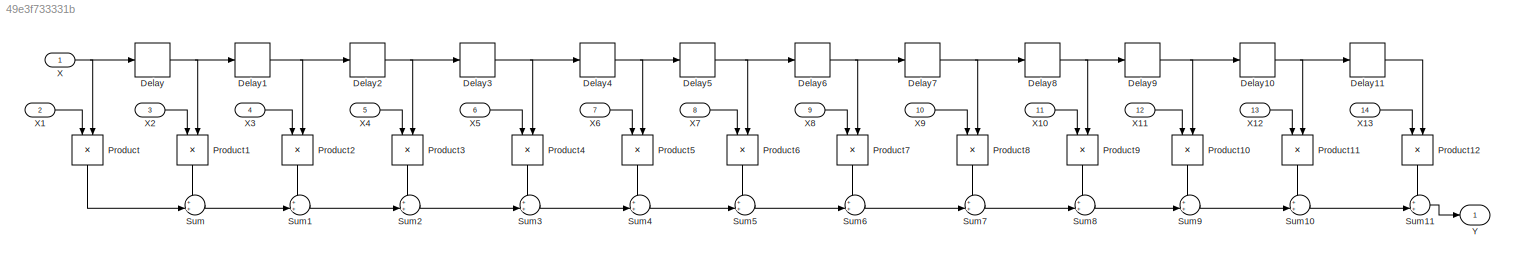
MODEL slx_49e3f733331b
KIND model
CONFIG AbsTol = auto
CONFIG EnableMultiTasking = off
CONFIG FixedStep = auto
CONFIG MaxStep = auto
CONFIG MinStep = auto
CONFIG RelTol = 1e-3
CONFIG SampleTimeConstraint = Unconstrained
CONFIG Solver = FixedStepDiscrete
CONFIG SolverName = FixedStepDiscrete
CONFIG StartTime = 0.0
CONFIG StopTime = 3000
BLOCK [Delay] Delay
  DelayLength = 1
  InputPortMap = u0
  Ports = [1, 1]
  SampleTime = 1
BLOCK [Delay] Delay1
  DelayLength = 1
  InputPortMap = u0
  Ports = [1, 1]
  SampleTime = 1
BLOCK [Delay] Delay10
  DelayLength = 1
  InputPortMap = u0
  Ports = [1, 1]
  SampleTime = 1
BLOCK [Delay] Delay11
  DelayLength = 1
  InputPortMap = u0
  Ports = [1, 1]
  SampleTime = 1
BLOCK [Delay] Delay2
  DelayLength = 1
  InputPortMap = u0
  Ports = [1, 1]
  SampleTime = 1
BLOCK [Delay] Delay3
  DelayLength = 1
  InputPortMap = u0
  Ports = [1, 1]
  SampleTime = 1
BLOCK [Delay] Delay4
  DelayLength = 1
  InputPortMap = u0
  Ports = [1, 1]
  SampleTime = 1
BLOCK [Delay] Delay5
  DelayLength = 1
  InputPortMap = u0
  Ports = [1, 1]
  SampleTime = 1
BLOCK [Delay] Delay6
  DelayLength = 1
  InputPortMap = u0
  Ports = [1, 1]
  SampleTime = 1
BLOCK [Delay] Delay7
  DelayLength = 1
  InputPortMap = u0
  Ports = [1, 1]
  SampleTime = 1
BLOCK [Delay] Delay8
  DelayLength = 1
  InputPortMap = u0
  Ports = [1, 1]
  SampleTime = 1
BLOCK [Delay] Delay9
  DelayLength = 1
  InputPortMap = u0
  Ports = [1, 1]
  SampleTime = 1
BLOCK [Product] Product
  InputSameDT = off
  OutDataTypeStr = fixdt(1,32,16)
  Ports = [2, 1]
  SaturateOnIntegerOverflow = off
BLOCK [Product] Product1
  InputSameDT = off
  OutDataTypeStr = fixdt(1,32,16)
  Ports = [2, 1]
  SaturateOnIntegerOverflow = off
BLOCK [Product] Product10
  InputSameDT = off
  OutDataTypeStr = fixdt(1,32,16)
  Ports = [2, 1]
  SaturateOnIntegerOverflow = off
BLOCK [Product] Product11
  InputSameDT = off
  OutDataTypeStr = fixdt(1,32,16)
  Ports = [2, 1]
  SaturateOnIntegerOverflow = off
BLOCK [Product] Product12
  InputSameDT = off
  OutDataTypeStr = fixdt(1,32,16)
  Ports = [2, 1]
  SaturateOnIntegerOverflow = off
BLOCK [Product] Product2
  InputSameDT = off
  OutDataTypeStr = fixdt(1,32,16)
  Ports = [2, 1]
  SaturateOnIntegerOverflow = off
BLOCK [Product] Product3
  InputSameDT = off
  OutDataTypeStr = fixdt(1,32,16)
  Ports = [2, 1]
  SaturateOnIntegerOverflow = off
BLOCK [Product] Product4
  InputSameDT = off
  OutDataTypeStr = fixdt(1,32,16)
  Ports = [2, 1]
  SaturateOnIntegerOverflow = off
BLOCK [Product] Product5
  InputSameDT = off
  OutDataTypeStr = fixdt(1,32,16)
  Ports = [2, 1]
  SaturateOnIntegerOverflow = off
BLOCK [Product] Product6
  InputSameDT = off
  OutDataTypeStr = fixdt(1,32,16)
  Ports = [2, 1]
  SaturateOnIntegerOverflow = off
BLOCK [Product] Product7
  InputSameDT = off
  OutDataTypeStr = fixdt(1,32,16)
  Ports = [2, 1]
  SaturateOnIntegerOverflow = off
BLOCK [Product] Product8
  InputSameDT = off
  OutDataTypeStr = fixdt(1,32,16)
  Ports = [2, 1]
  SaturateOnIntegerOverflow = off
BLOCK [Product] Product9
  InputSameDT = off
  OutDataTypeStr = fixdt(1,32,16)
  Ports = [2, 1]
  SaturateOnIntegerOverflow = off
BLOCK [Sum] Sum
  AccumDataTypeStr = fixdt(1,32,16)
  IconShape = round
  InputSameDT = off
  Inputs = ++|
  OutDataTypeStr = fixdt(1,32,16)
  Ports = [2, 1]
  SaturateOnIntegerOverflow = off
BLOCK [Sum] Sum1
  AccumDataTypeStr = fixdt(1,32,16)
  IconShape = round
  InputSameDT = off
  Inputs = ++|
  OutDataTypeStr = fixdt(1,32,16)
  Ports = [2, 1]
  SaturateOnIntegerOverflow = off
BLOCK [Sum] Sum10
  AccumDataTypeStr = fixdt(1,32,16)
  IconShape = round
  InputSameDT = off
  Inputs = ++|
  OutDataTypeStr = fixdt(1,32,16)
  Ports = [2, 1]
  SaturateOnIntegerOverflow = off
BLOCK [Sum] Sum11
  AccumDataTypeStr = fixdt(1,32,16)
  IconShape = round
  InputSameDT = off
  Inputs = ++|
  OutDataTypeStr = fixdt(1,32,16)
  Ports = [2, 1]
  SaturateOnIntegerOverflow = off
BLOCK [Sum] Sum2
  AccumDataTypeStr = fixdt(1,32,16)
  IconShape = round
  InputSameDT = off
  Inputs = ++|
  OutDataTypeStr = fixdt(1,32,16)
  Ports = [2, 1]
  SaturateOnIntegerOverflow = off
BLOCK [Sum] Sum3
  AccumDataTypeStr = fixdt(1,32,16)
  IconShape = round
  InputSameDT = off
  Inputs = ++|
  OutDataTypeStr = fixdt(1,32,16)
  Ports = [2, 1]
  SaturateOnIntegerOverflow = off
BLOCK [Sum] Sum4
  AccumDataTypeStr = fixdt(1,32,16)
  IconShape = round
  InputSameDT = off
  Inputs = ++|
  OutDataTypeStr = fixdt(1,32,16)
  Ports = [2, 1]
  SaturateOnIntegerOverflow = off
BLOCK [Sum] Sum5
  AccumDataTypeStr = fixdt(1,32,16)
  IconShape = round
  InputSameDT = off
  Inputs = ++|
  OutDataTypeStr = fixdt(1,32,16)
  Ports = [2, 1]
  SaturateOnIntegerOverflow = off
BLOCK [Sum] Sum6
  AccumDataTypeStr = fixdt(1,32,16)
  IconShape = round
  InputSameDT = off
  Inputs = ++|
  OutDataTypeStr = fixdt(1,32,16)
  Ports = [2, 1]
  SaturateOnIntegerOverflow = off
BLOCK [Sum] Sum7
  AccumDataTypeStr = fixdt(1,32,16)
  IconShape = round
  InputSameDT = off
  Inputs = ++|
  OutDataTypeStr = fixdt(1,32,16)
  Ports = [2, 1]
  SaturateOnIntegerOverflow = off
BLOCK [Sum] Sum8
  AccumDataTypeStr = fixdt(1,32,16)
  IconShape = round
  InputSameDT = off
  Inputs = ++|
  OutDataTypeStr = fixdt(1,32,16)
  Ports = [2, 1]
  SaturateOnIntegerOverflow = off
BLOCK [Sum] Sum9
  AccumDataTypeStr = fixdt(1,32,16)
  IconShape = round
  InputSameDT = off
  Inputs = ++|
  OutDataTypeStr = fixdt(1,32,16)
  Ports = [2, 1]
  SaturateOnIntegerOverflow = off
BLOCK [Inport] X
  IconDisplay = Port number
BLOCK [Inport] X1
  IconDisplay = Port number
  OutDataTypeStr = fixdt(1,32,16)
  Port = 2
BLOCK [Inport] X10
  IconDisplay = Port number
  OutDataTypeStr = fixdt(1,32,16)
  Port = 11
BLOCK [Inport] X11
  IconDisplay = Port number
  OutDataTypeStr = fixdt(1,32,16)
  Port = 12
BLOCK [Inport] X12
  IconDisplay = Port number
  OutDataTypeStr = fixdt(1,32,16)
  Port = 13
BLOCK [Inport] X13
  IconDisplay = Port number
  OutDataTypeStr = fixdt(1,32,16)
  Port = 14
BLOCK [Inport] X2
  IconDisplay = Port number
  OutDataTypeStr = fixdt(1,32,16)
  Port = 3
BLOCK [Inport] X3
  IconDisplay = Port number
  OutDataTypeStr = fixdt(1,32,16)
  Port = 4
BLOCK [Inport] X4
  IconDisplay = Port number
  OutDataTypeStr = fixdt(1,32,16)
  Port = 5
BLOCK [Inport] X5
  IconDisplay = Port number
  OutDataTypeStr = fixdt(1,32,16)
  Port = 6
BLOCK [Inport] X6
  IconDisplay = Port number
  OutDataTypeStr = fixdt(1,32,16)
  Port = 7
BLOCK [Inport] X7
  IconDisplay = Port number
  OutDataTypeStr = fixdt(1,32,16)
  Port = 8
BLOCK [Inport] X8
  IconDisplay = Port number
  OutDataTypeStr = fixdt(1,32,16)
  Port = 9
BLOCK [Inport] X9
  IconDisplay = Port number
  OutDataTypeStr = fixdt(1,32,16)
  Port = 10
BLOCK [Outport] Y
  IconDisplay = Port number
  OutDataTypeStr = fixdt(1,32,16)
NET Delay10:1 -> Delay11:1, Product11:2
LINE Delay11:1 -> Product12:2
NET Delay1:1 -> Delay2:1, Product2:2
NET Delay2:1 -> Delay3:1, Product3:2
NET Delay3:1 -> Delay4:1, Product4:2
NET Delay4:1 -> Delay5:1, Product5:2
NET Delay5:1 -> Delay6:1, Product6:2
NET Delay6:1 -> Delay7:1, Product7:2
NET Delay7:1 -> Delay8:1, Product8:2
NET Delay8:1 -> Delay9:1, Product9:2
NET Delay9:1 -> Delay10:1, Product10:2
NET Delay:1 -> Delay1:1, Product1:2
LINE Product10:1 -> Sum9:1
LINE Product11:1 -> Sum10:1
LINE Product12:1 -> Sum11:1
LINE Product1:1 -> Sum:1
LINE Product2:1 -> Sum1:1
LINE Product3:1 -> Sum2:1
LINE Product4:1 -> Sum3:1
LINE Product5:1 -> Sum4:1
LINE Product6:1 -> Sum5:1
LINE Product7:1 -> Sum6:1
LINE Product8:1 -> Sum7:1
LINE Product9:1 -> Sum8:1
LINE Product:1 -> Sum:2
LINE Sum10:1 -> Sum11:2
LINE Sum11:1 -> Y:1
LINE Sum1:1 -> Sum2:2
LINE Sum2:1 -> Sum3:2
LINE Sum3:1 -> Sum4:2
LINE Sum4:1 -> Sum5:2
LINE Sum5:1 -> Sum6:2
LINE Sum6:1 -> Sum7:2
LINE Sum7:1 -> Sum8:2
LINE Sum8:1 -> Sum9:2
LINE Sum9:1 -> Sum10:2
LINE Sum:1 -> Sum1:2
LINE X10:1 -> Product9:1
LINE X11:1 -> Product10:1
LINE X12:1 -> Product11:1
LINE X13:1 -> Product12:1
LINE X1:1 -> Product:1
LINE X2:1 -> Product1:1
LINE X3:1 -> Product2:1
LINE X4:1 -> Product3:1
LINE X5:1 -> Product4:1
LINE X6:1 -> Product5:1
LINE X7:1 -> Product6:1
LINE X8:1 -> Product7:1
LINE X9:1 -> Product8:1
NET X:1 -> Delay:1, Product:2
note: NET lines group one-source signal fan-out (src -> all destinations, sorted); 1:1 wires keep LINE
